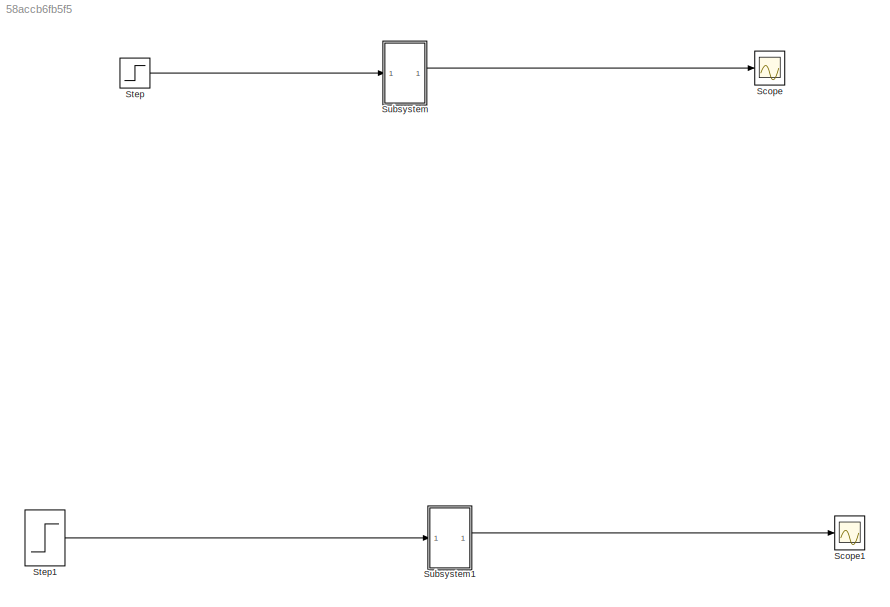
MODEL slx_58accb6fb5f5
KIND model
CONFIG AbsTol = auto
CONFIG EnableMultiTasking = off
CONFIG FixedStep = auto
CONFIG MaxStep = auto
CONFIG MinStep = auto
CONFIG RelTol = 1e-3
CONFIG SampleTimeConstraint = Unconstrained
CONFIG SolverName = VariableStepAuto
CONFIG StartTime = 0.0
CONFIG StopTime = 10
BLOCK [Scope] Scope
  Floating = off
  NumInputPorts = 1
  ScopeSpecificationString = Simulink.scopes.TimeScopeBlockCfg('CurrentConfiguration', extmgr.ConfigurationSet(extmgr.Configuration('Core','General UI',true),extmgr.Configuration('Core','Source UI',true),extmgr.Configuration('Sources','WiredSimulink',true),extmgr.Configuration('Visuals','Time Domain',true,'SerializedDisplays',{struct('MinYLimReal','-0.14533','MaxYLimReal','1.30795','YLabelReal','','MinYLimMag','0.00000','MaxY...<+1358ch>
BLOCK [Scope] Scope1
  Floating = off
  NumInputPorts = 1
  ScopeSpecificationString = Simulink.scopes.TimeScopeBlockCfg('CurrentConfiguration', extmgr.ConfigurationSet(extmgr.Configuration('Core','General UI',true),extmgr.Configuration('Core','Source UI',true),extmgr.Configuration('Sources','WiredSimulink',true,'DataLoggingVariableName','ScopeData1'),extmgr.Configuration('Visuals','Time Domain',true,'SerializedDisplays',{struct('MinYLimReal','-0.13917','MaxYLimReal','1.25254','YLab...<+1398ch>
BLOCK [Step] Step
  SampleTime = 0
BLOCK [Step] Step1
  SampleTime = 0
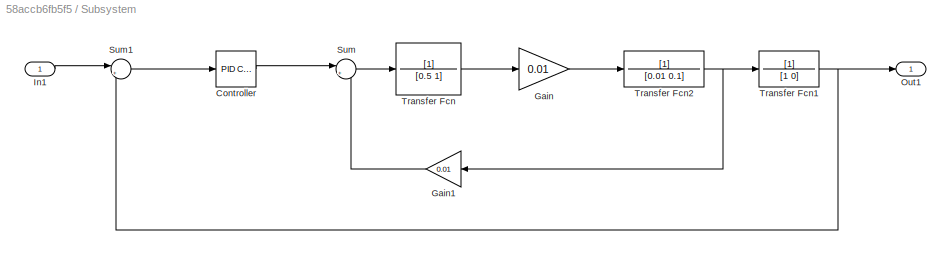
BLOCK [SubSystem] Subsystem
BLOCK [Reference] Subsystem/ Controller  REF=slpidlib/PID Controller
  LibrarySourceBlock = simulink/Continuous/PID Controller
  SourceBlock = slpidlib/PID Controller
  SourceType = PID 1dof
BLOCK [Gain] Subsystem/Gain
  Gain = 0.01
BLOCK [Gain] Subsystem/Gain1
  Gain = 0.01
BLOCK [Inport] Subsystem/In1
BLOCK [Outport] Subsystem/Out1
BLOCK [Sum] Subsystem/Sum
  Inputs = |+-
BLOCK [Sum] Subsystem/Sum1
  Inputs = |+-
BLOCK [TransferFcn] Subsystem/Transfer Fcn
  Denominator = [0.5 1]
BLOCK [TransferFcn] Subsystem/Transfer Fcn1
  Denominator = [1 0]
BLOCK [TransferFcn] Subsystem/Transfer Fcn2
  Denominator = [0.01 0.1]
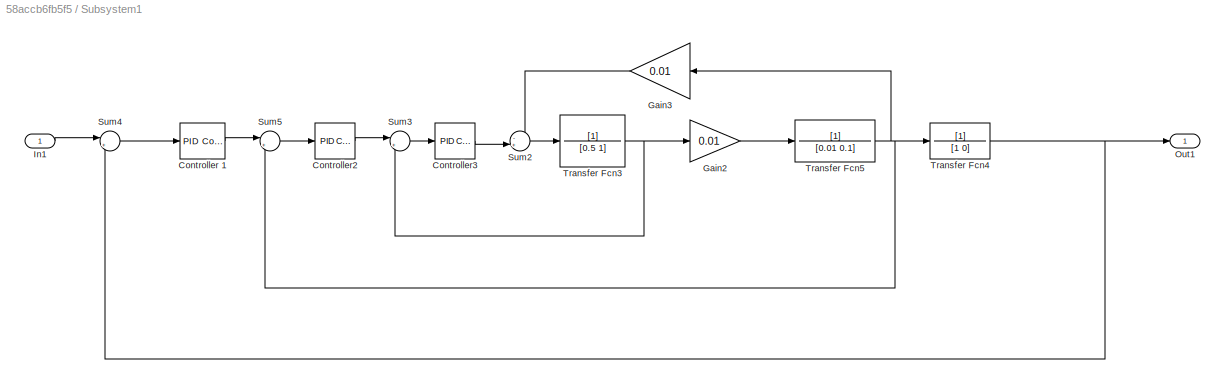
BLOCK [SubSystem] Subsystem1
BLOCK [Reference] Subsystem1/Controller 1  REF=slpidlib/PID Controller
  LibrarySourceBlock = simulink/Continuous/PID Controller
  SourceBlock = slpidlib/PID Controller
  SourceType = PID 1dof
BLOCK [Reference] Subsystem1/Controller2  REF=slpidlib/PID Controller
  LibrarySourceBlock = simulink/Continuous/PID Controller
  SourceBlock = slpidlib/PID Controller
  SourceType = PID 1dof
BLOCK [Reference] Subsystem1/Controller3  REF=slpidlib/PID Controller
  LibrarySourceBlock = simulink/Continuous/PID Controller
  SourceBlock = slpidlib/PID Controller
  SourceType = PID 1dof
BLOCK [Gain] Subsystem1/Gain2
  Gain = 0.01
BLOCK [Gain] Subsystem1/Gain3
  Gain = 0.01
BLOCK [Inport] Subsystem1/In1
BLOCK [Outport] Subsystem1/Out1
BLOCK [Sum] Subsystem1/Sum2
  Inputs = -+|
BLOCK [Sum] Subsystem1/Sum3
  Inputs = |+-
BLOCK [Sum] Subsystem1/Sum4
  Inputs = |+-
BLOCK [Sum] Subsystem1/Sum5
  Inputs = |+-
BLOCK [TransferFcn] Subsystem1/Transfer Fcn3
  Denominator = [0.5 1]
BLOCK [TransferFcn] Subsystem1/Transfer Fcn4
  Denominator = [1 0]
BLOCK [TransferFcn] Subsystem1/Transfer Fcn5
  Denominator = [0.01 0.1]
LINE Step1:1 -> Subsystem1:1
LINE Step:1 -> Subsystem:1
LINE Subsystem/ Controller:1 -> Subsystem/Sum:1
LINE Subsystem/Gain1:1 -> Subsystem/Sum:2
LINE Subsystem/Gain:1 -> Subsystem/Transfer Fcn2:1
LINE Subsystem/In1:1 -> Subsystem/Sum1:1
LINE Subsystem/Sum1:1 -> Subsystem/ Controller:1
LINE Subsystem/Sum:1 -> Subsystem/Transfer Fcn:1
NET Subsystem/Transfer Fcn1:1 -> Subsystem/Out1:1, Subsystem/Sum1:2
NET Subsystem/Transfer Fcn2:1 -> Subsystem/Gain1:1, Subsystem/Transfer Fcn1:1
LINE Subsystem/Transfer Fcn:1 -> Subsystem/Gain:1
LINE Subsystem1/Controller 1:1 -> Subsystem1/Sum5:1
LINE Subsystem1/Controller2:1 -> Subsystem1/Sum3:1
LINE Subsystem1/Controller3:1 -> Subsystem1/Sum2:2
LINE Subsystem1/Gain2:1 -> Subsystem1/Transfer Fcn5:1
LINE Subsystem1/Gain3:1 -> Subsystem1/Sum2:1
LINE Subsystem1/In1:1 -> Subsystem1/Sum4:1
LINE Subsystem1/Sum2:1 -> Subsystem1/Transfer Fcn3:1
LINE Subsystem1/Sum3:1 -> Subsystem1/Controller3:1
LINE Subsystem1/Sum4:1 -> Subsystem1/Controller 1:1
LINE Subsystem1/Sum5:1 -> Subsystem1/Controller2:1
NET Subsystem1/Transfer Fcn3:1 -> Subsystem1/Gain2:1, Subsystem1/Sum3:2
NET Subsystem1/Transfer Fcn4:1 -> Subsystem1/Out1:1, Subsystem1/Sum4:2
NET Subsystem1/Transfer Fcn5:1 -> Subsystem1/Gain3:1, Subsystem1/Sum5:2, Subsystem1/Transfer Fcn4:1
LINE Subsystem1:1 -> Scope1:1
LINE Subsystem:1 -> Scope:1
note: NET lines group one-source signal fan-out (src -> all destinations, sorted); 1:1 wires keep LINE
